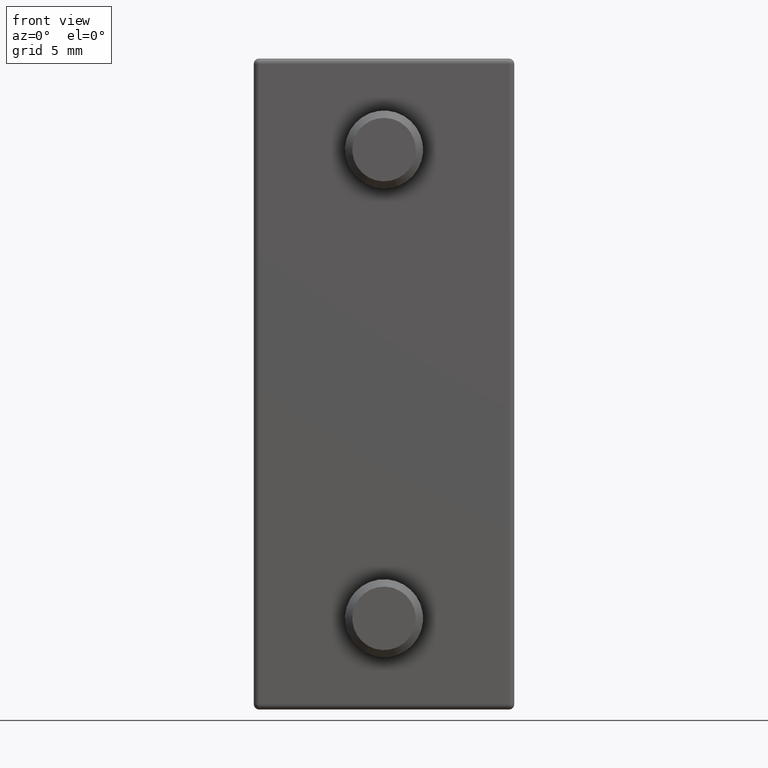
[diagram: clean part render]
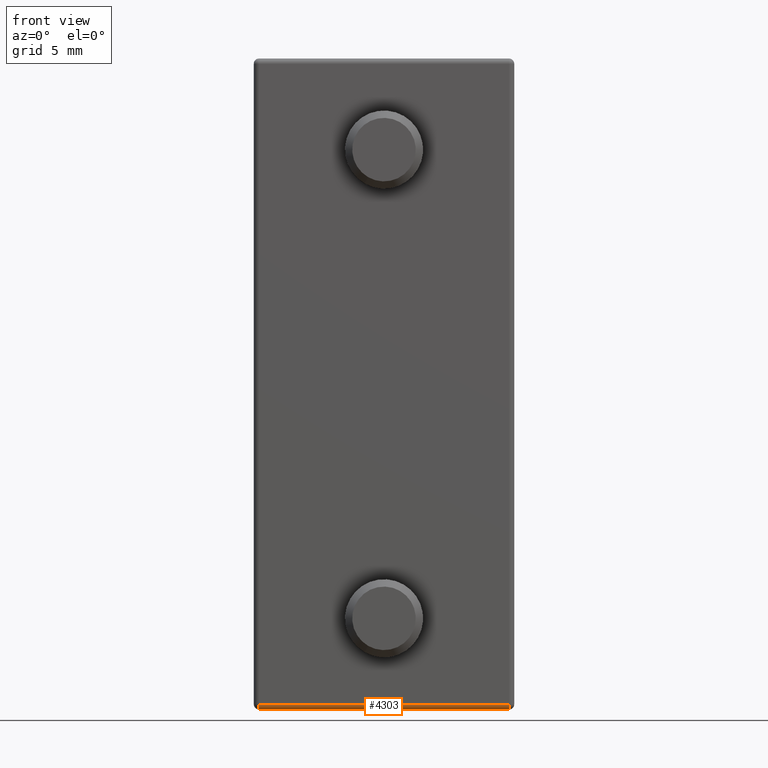
[diagram: same view with one face highlighted and labeled with its STEP entity id]
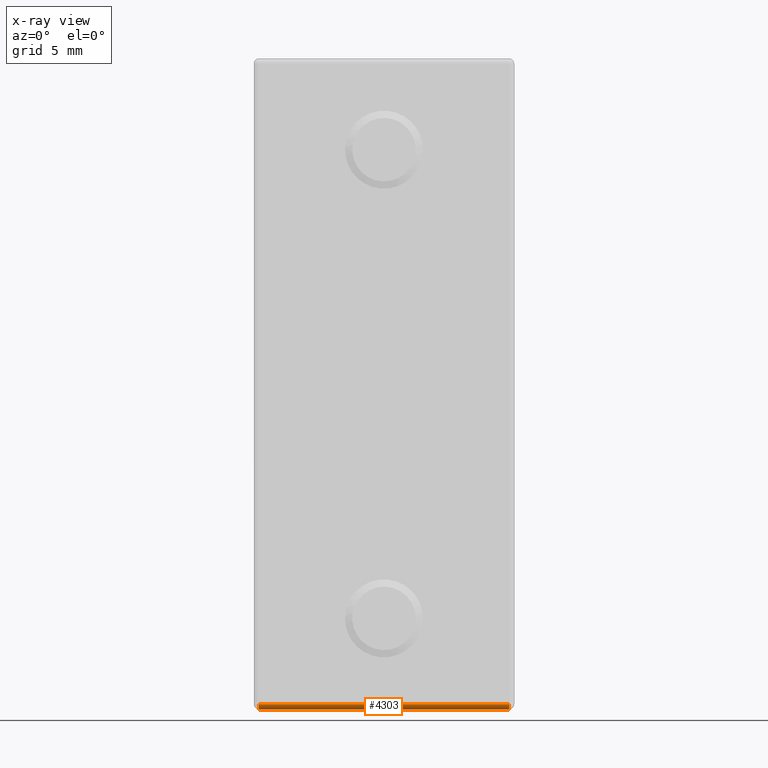
[diagram: x-ray of the same camera — body ghosted, the highlighted face saturated]
A machine part, front view. The second image highlights one B-rep face of the part: STEP entity #4303.
The next image is the same camera in x-ray: the body ghosted, the highlighted face saturated — about 0% of this face is hidden behind the body in this view.
In plain terms, the highlighted cylindrical surface (edge-blend (fillet) strip) has radius 0.2 mm, axis along (1, 0, 0).
Its self-contained STEP definition (entity closure, byte-faithful):
#523 = DIRECTION ( 'NONE',  ( 0.0000000000000000000, 0.0000000000000000000, -1.000000000000000000 ) ) ;
#1040 = DIRECTION ( 'NONE',  ( -1.000000000000000000, -0.0000000000000000000, -0.0000000000000000000 ) ) ;
#2427 = DIRECTION ( 'NONE',  ( 1.000000000000000000, 0.0000000000000000000, 0.0000000000000000000 ) ) ;
#2509 = CARTESIAN_POINT ( 'NONE',  ( -4.800000000000001600, -1.299999999999999400, -12.50000000000000000 ) ) ;
#3831 = EDGE_CURVE ( 'NONE', #8246, #10292, #4852, .T. ) ;
#4303 = ADVANCED_FACE ( 'NONE', ( #7240 ), #10917, .T. ) ;
#4768 = ORIENTED_EDGE ( 'NONE', *, *, #12852, .F. ) ;
#4852 = LINE ( 'NONE', #9153, #11091 ) ;
#5197 = VECTOR ( 'NONE', #9923, 1000.000000000000000 ) ;
#5198 = CARTESIAN_POINT ( 'NONE',  ( 4.799999999999999800, -1.499999999999999300, -12.30000000000000200 ) ) ;
#5608 = DIRECTION ( 'NONE',  ( -1.000000000000000000, 0.0000000000000000000, -0.0000000000000000000 ) ) ;
#6071 = EDGE_LOOP ( 'NONE', ( #11307, #10356, #4768, #7798 ) ) ;
#6526 = CARTESIAN_POINT ( 'NONE',  ( -4.800000000000001600, -1.499999999999999300, -12.30000000000000200 ) ) ;
#6718 = VERTEX_POINT ( 'NONE', #6526 ) ;
#6940 = DIRECTION ( 'NONE',  ( 0.0000000000000000000, 0.0000000000000000000, -1.000000000000000000 ) ) ;
#7240 = FACE_OUTER_BOUND ( 'NONE', #6071, .T. ) ;
#7612 = EDGE_CURVE ( 'NONE', #6718, #12577, #9013, .T. ) ;
#7784 = DIRECTION ( 'NONE',  ( 0.0000000000000000000, 0.0000000000000000000, 1.000000000000000000 ) ) ;
#7798 = ORIENTED_EDGE ( 'NONE', *, *, #3831, .F. ) ;
#8013 = CARTESIAN_POINT ( 'NONE',  ( -5.000000000000000900, -1.299999999999999400, -12.30000000000000200 ) ) ;
#8246 = VERTEX_POINT ( 'NONE', #8285 ) ;
#8285 = CARTESIAN_POINT ( 'NONE',  ( 4.799999999999999800, -1.299999999999999400, -12.50000000000000000 ) ) ;
#8496 = CARTESIAN_POINT ( 'NONE',  ( 4.799999999999999800, -1.299999999999999400, -12.30000000000000200 ) ) ;
#8537 = AXIS2_PLACEMENT_3D ( 'NONE', #8013, #12997, #6940 ) ;
#9013 = LINE ( 'NONE', #12846, #5197 ) ;
#9153 = CARTESIAN_POINT ( 'NONE',  ( 0.0000000000000000000, -1.299999999999999400, -12.50000000000000000 ) ) ;
#9505 = CIRCLE ( 'NONE', #10472, 0.2000000000000005100 ) ;
#9923 = DIRECTION ( 'NONE',  ( 1.000000000000000000, -0.0000000000000000000, 0.0000000000000000000 ) ) ;
#10292 = VERTEX_POINT ( 'NONE', #2509 ) ;
#10313 = EDGE_CURVE ( 'NONE', #12577, #8246, #9505, .T. ) ;
#10356 = ORIENTED_EDGE ( 'NONE', *, *, #7612, .F. ) ;
#10472 = AXIS2_PLACEMENT_3D ( 'NONE', #8496, #2427, #523 ) ;
#10917 = CYLINDRICAL_SURFACE ( 'NONE', #8537, 0.2000000000000005100 ) ;
#11003 = CIRCLE ( 'NONE', #12092, 0.2000000000000005100 ) ;
#11091 = VECTOR ( 'NONE', #1040, 1000.000000000000000 ) ;
#11307 = ORIENTED_EDGE ( 'NONE', *, *, #10313, .F. ) ;
#11702 = CARTESIAN_POINT ( 'NONE',  ( -4.800000000000001600, -1.299999999999999400, -12.30000000000000100 ) ) ;
#12092 = AXIS2_PLACEMENT_3D ( 'NONE', #11702, #5608, #7784 ) ;
#12577 = VERTEX_POINT ( 'NONE', #5198 ) ;
#12846 = CARTESIAN_POINT ( 'NONE',  ( -5.000000000000000900, -1.499999999999999300, -12.30000000000000200 ) ) ;
#12852 = EDGE_CURVE ( 'NONE', #10292, #6718, #11003, .T. ) ;
#12997 = DIRECTION ( 'NONE',  ( 1.000000000000000000, -0.0000000000000000000, 0.0000000000000000000 ) ) ;